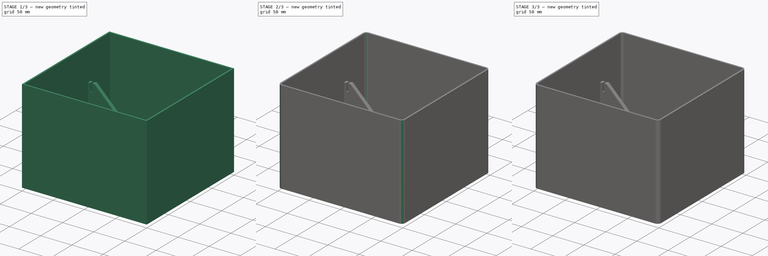
[diagram: build sequence overview — one tinted view per stage of 3, left to right]
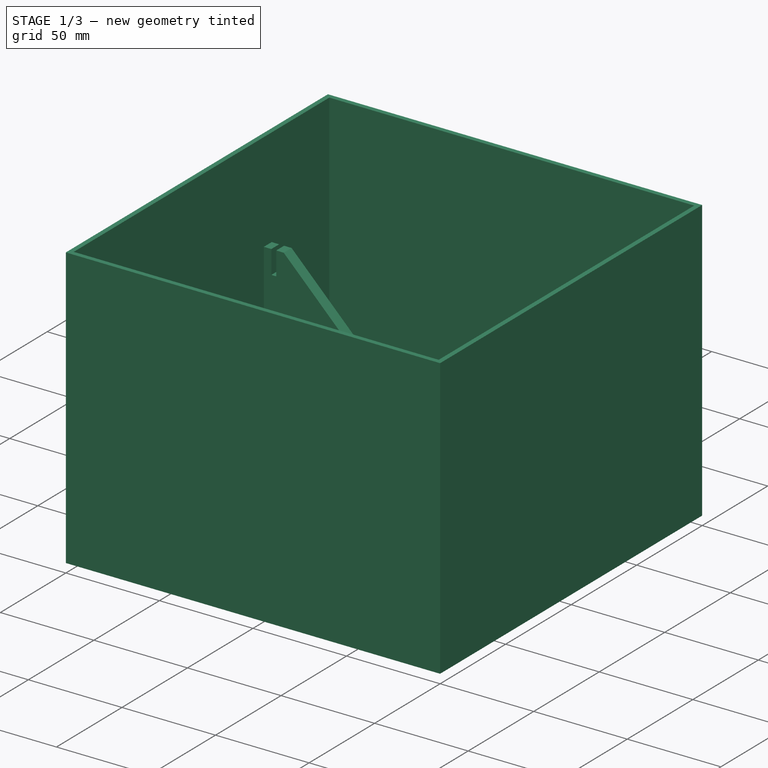
[diagram: stage 1 of 3 — iso view after this stage's code; geometry added in this stage tinted green]
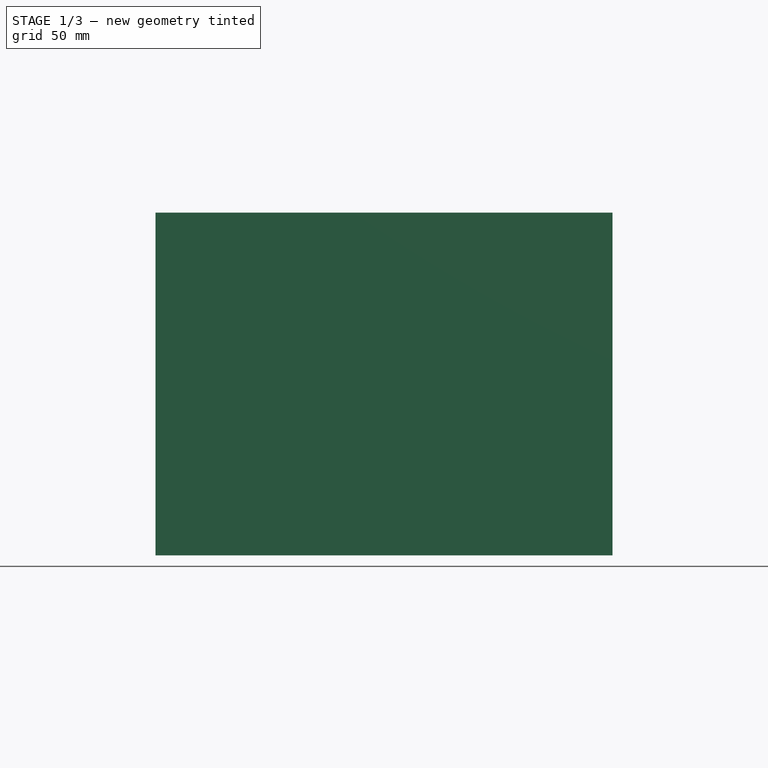
[diagram: stage 1 of 3 — front view after this stage's code; geometry added in this stage tinted green]
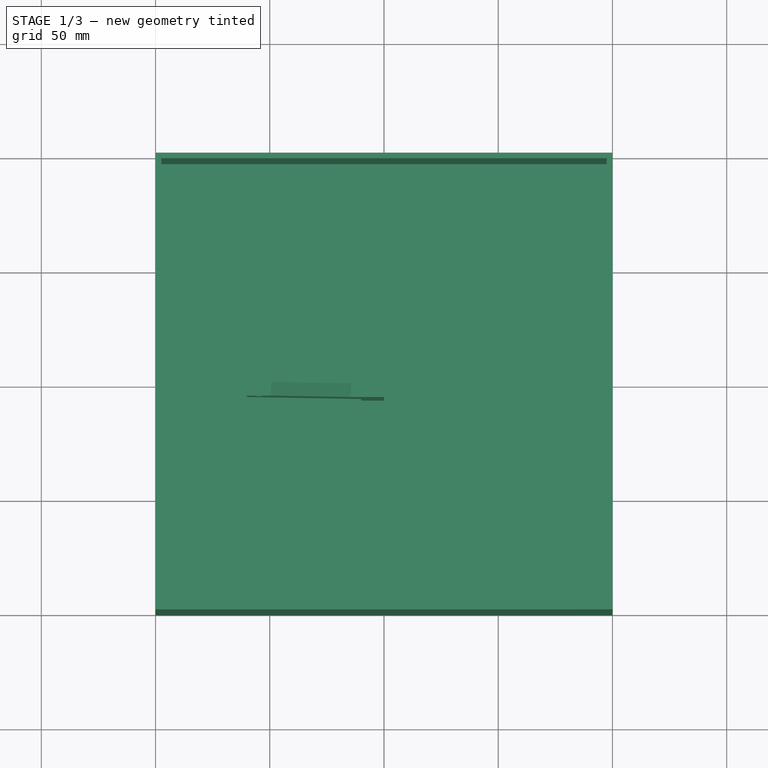
[diagram: stage 1 of 3 — top view after this stage's code; geometry added in this stage tinted green]
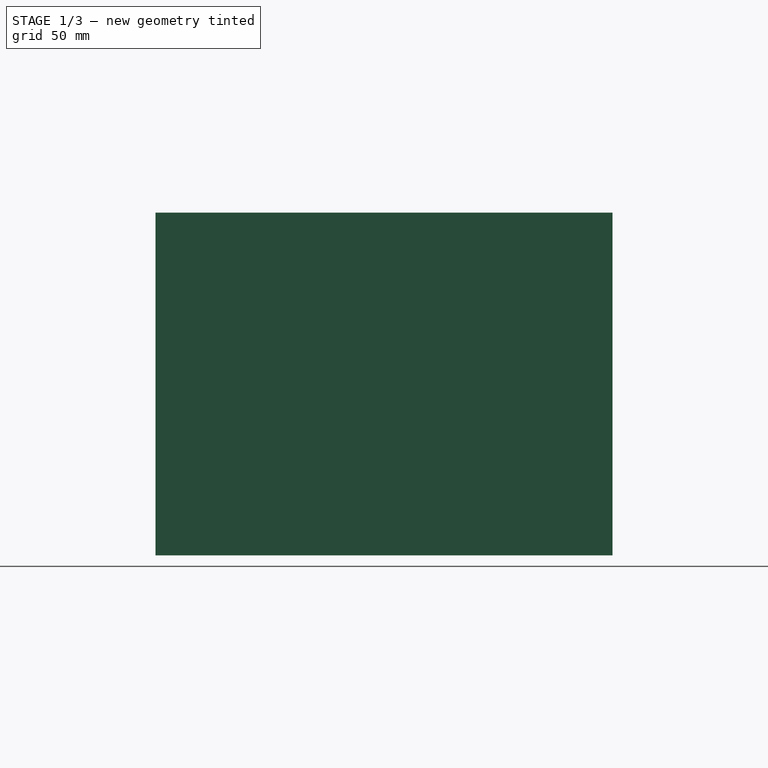
[diagram: stage 1 of 3 — right view after this stage's code; geometry added in this stage tinted green]
FCSTD DOCUMENT  (FreeCAD 0.21RUnknown)
Label: useless-box
License: All rights reserved
LicenseURL: https://en.wikipedia.org/wiki/All_rights_reserved
objects: Part::Feature×10, Sketcher::SketchObject×7, App::Part×7, PartDesign::Body×4, PartDesign::Pad×3, Spreadsheet::Sheet×3, PartDesign::Pocket×3, App::DocumentObjectGroup×3, PartDesign::Fillet×2, PartDesign::CoordinateSystem×1, App::FeaturePython×1
note: 38 computed .brp shape members not serialized (recipe doc carries the construction recipe); baked Part::Feature solids carry a one-line shape summary decoded from their .brp

FEATURE [PartDesign::Body] Body001
  Group = -> [Sketch001,Pad,Pocket001,Sketch002,Pocket,Sketch003]
  Origin = -> Origin002
  Tip = -> Pocket
FEATURE [App::Part] Part  label="BatteryHolder"
  Group = -> [Body001]
  Origin = -> Origin001
  Placement = pos=(61,68,3) rot=(0,0,1;0rad)
FEATURE [Part::Feature] Part__Feature  label="COMPOUND"
  shape: bbox 35.38 x 8.41 x 86 mm, 4496 faces (baked)
FEATURE [Part::Feature] Part__Feature001  label="COMPOUND001"
  shape: bbox 11.3 x 8.41 x 86 mm, 519 faces (baked)
FEATURE [Part::Feature] Part__Feature002  label="COMPOUND002"
  shape: bbox 9.3 x 8.41 x 86 mm, 519 faces (baked)
FEATURE [App::Part] COMPOUND  label="COMPOUND003"
  Group = -> [Part__Feature,Part__Feature001,Part__Feature002]
  Origin = -> Origin003
FEATURE [App::Part] Breadboard_400  label="Breadboard 400"
  Group = -> [COMPOUND]
  Origin = -> Origin004
  Placement = pos=(-59,43,3) rot=(-0.57735,-0.57735,-0.57735;4.18879rad)
FEATURE [Spreadsheet::Sheet] Spreadsheet001  label="BoxParameters"
  cells = A1='width; B1(width)==200 mm; D1='Computed ->; A2='length; B2(length)==200 mm; A3='height; B3(height)==150 mm; E3='inner_height; F3(inner_height)==B3 - B5; A5='wall_width; B5(wall_width)==2.5 mm; A7='smoothness_sides; B7(smoothness_sides)==6 mm; E7='smoothness_sides_inner; F7(smoothness_sides_inner)==B7 - B5; A9='motor_height_from_top; B9==20 mm; E9='motor_height; F9(motor_height)==F3 - B9
FEATURE [Part::Feature] Part__Feature003  label="Llave tecla doble corte Redonda"
  shape: bbox 0.8 x 8 x 4.8 mm, 14 faces (baked)
FEATURE [Part::Feature] Part__Feature004  label="Llave tecla doble corte Redonda001"
  shape: bbox 0.8 x 8 x 4.8 mm, 14 faces (baked)
FEATURE [Part::Feature] Part__Feature005  label="Llave tecla doble corte Redonda002"
  shape: bbox 0.8 x 8 x 4.8 mm, 14 faces (baked)
FEATURE [Part::Feature] Part__Feature006  label="Llave tecla doble corte Redonda003"
  shape: bbox 0.8 x 8 x 4.8 mm, 14 faces (baked)
FEATURE [Part::Feature] Part__Feature007  label="Llave tecla doble corte Redonda004"
  shape: bbox 17 x 11.75 x 17 mm, 6 faces (baked)
FEATURE [Part::Feature] Part__Feature008  label="Llave tecla doble corte Redonda005"
  shape: bbox 23.08 x 26.32 x 23 mm, 97 faces (baked)
FEATURE [App::Part] Llave_tecla_doble_corte_Redonda  label="Llave tecla doble corte Redonda006"
  Group = -> [Part__Feature003,Part__Feature004,Part__Feature005,Part__Feature006,Part__Feature007,Part__Feature008]
  Origin = -> Origin007
  Placement = pos=(75,-100,41) rot=(0,0,1;3.14159rad)
FEATURE [Sketcher::SketchObject] Sketch004
  FullyConstrained = true
  MapMode = 5
  Support = -> [XY_Plane006]
  expr: Constraints[10] = <<BoxParameters>>.length / 2
  expr: Constraints[11] = <<BoxParameters>>.width / 2
  expr: Constraints[8] = <<BoxParameters>>.width
  expr: Constraints[9] = <<BoxParameters>>.length
  sketch-geometry (4):
    g0: LineSegment StartX=-100 StartY=100 StartZ=0 EndX=100 EndY=100 EndZ=0
    g1: LineSegment StartX=100 StartY=100 StartZ=0 EndX=100 EndY=-100 EndZ=0
    g2: LineSegment StartX=100 StartY=-100 StartZ=0 EndX=-100 EndY=-100 EndZ=0
    g3: LineSegment StartX=-100 StartY=-100 StartZ=0 EndX=-100 EndY=100 EndZ=0
  constraints (12):
    c: Coincident(g0,g1)
    c: Coincident(g1,g2)
    c: Coincident(g2,g3)
    c: Coincident(g3,g0)
    c: Horizontal(g0)
    c: Horizontal(g2)
    c: Vertical(g1)
    c: Vertical(g3)
    c: DistanceX(g0,g0) = 200
    c: DistanceY(g3,g3) = 200
    c: DistanceY(g-1,g0) = 100
    c: DistanceX(g0,g-1) = 100
FEATURE [PartDesign::Pad] Pad001
  Direction = (0,0,1)
  Length = 150
  Length2 = 10
  Profile = -> Sketch004
  ReferenceAxis = -> Sketch004 [N_Axis]
  Type = 0
  expr: Length = <<BoxParameters>>.height
FEATURE [Sketcher::SketchObject] Sketch005
  ExternalGeometry = -> [Pad001]
  FullyConstrained = true
  MapMode = 5
  Placement = pos=(0,0,150) rot=(0,0,1;0rad)
  Support = -> [Pad001]
  expr: Constraints[10] = <<BoxParameters>>.wall_width
  expr: Constraints[11] = <<BoxParameters>>.wall_width
  expr: Constraints[8] = <<BoxParameters>>.wall_width
  expr: Constraints[9] = <<BoxParameters>>.wall_width
  sketch-geometry (4):
    g0: LineSegment StartX=-97.5 StartY=97.5 StartZ=0 EndX=97.5 EndY=97.5 EndZ=0
    g1: LineSegment StartX=97.5 StartY=97.5 StartZ=0 EndX=97.5 EndY=-97.5 EndZ=0
    g2: LineSegment StartX=97.5 StartY=-97.5 StartZ=0 EndX=-97.5 EndY=-97.5 EndZ=0
    g3: LineSegment StartX=-97.5 StartY=-97.5 StartZ=0 EndX=-97.5 EndY=97.5 EndZ=0
  constraints (12):
    c: Coincident(g0,g1)
    c: Coincident(g1,g2)
    c: Coincident(g2,g3)
    c: Coincident(g3,g0)
    c: Horizontal(g0)
    c: Horizontal(g2)
    c: Vertical(g1)
    c: Vertical(g3)
    c: DistanceX(g-4,g0) = 2.5
    c: DistanceY(g0,g-6) = 2.5
    c: DistanceX(g1,g-6) = 2.5
    c: DistanceY(g-5,g2) = 2.5
FEATURE [PartDesign::Pocket] Pocket002
  BaseFeature = -> Pad001
  Direction = (0,0,-1)
  Length = 147.5
  Length2 = 5
  Profile = -> Sketch005
  ReferenceAxis = -> Sketch005 [N_Axis]
  Type = 0
  expr: Length = <<BoxParameters>>.height - <<BoxParameters>>.wall_width
FEATURE [PartDesign::Body] Body002  label="Box base"
  Group = -> [Sketch004,Pad001,Sketch005,Pocket002,Fillet,Fillet001]
  Origin = -> Origin006
  Tip = -> Fillet001
FEATURE [App::Part] Part001  label="Box"
  Group = -> [Body002]
  Origin = -> Origin005
FEATURE [Part::Feature] Part__Feature009  label="Tower Pro MG90S Micro servo"
  Placement = pos=(-46.3,-19,121.2) rot=(0,0,1;1.5708rad)
  shape: bbox 33.03 x 32.28 x 12.77 mm, 767 faces (baked)
FEATURE [Sketcher::SketchObject] Sketch007
  FullyConstrained = true
  MapMode = 5
  Placement = pos=(0,0,0) rot=(1,0,0;1.5708rad)
  Support = -> [XZ_Plane009]
  expr: Constraints[11] = Spreadsheet002.holder_gap_width
  expr: Constraints[12] = <<ServoHolderParameters>>.holder_gap_height
  expr: Constraints[13] = <<ServoHolderParameters>>.holder_gap_height
  expr: Constraints[14] = <<ServoHolderParameters>>.holder_gap_support_width
  expr: Constraints[15] = <<ServoHolderParameters>>.holder_gap_support_width
  expr: Constraints[19] = <<ServoHolderParameters>>.flat_height
  expr: Constraints[21] = <<ServoHolderParameters>>.flat_height
  expr: Constraints[22] = <<ServoHolderParameters>>.flat_height
  expr: Constraints[23] = <<ServoHolderParameters>>.servo_x_position - <<ServoHolderParameters>>.base_width
  expr: Constraints[24] = <<ServoHolderParameters>>.servo_x_position - <<ServoHolderParameters>>.base_width
  expr: Constraints[33] = <<BoxParameters>>.motor_height
  expr: Constraints[34] = <<ServoHolderParameters>>.base_width
  sketch-geometry (12):
    g0: LineSegment StartX=-10 StartY=42.5 StartZ=0 EndX=-60 EndY=92.5 EndZ=0
    g1: LineSegment StartX=-60 StartY=127.5 StartZ=0 EndX=-60 EndY=92.5 EndZ=0
    g2: LineSegment StartX=-60 StartY=127.5 StartZ=0 EndX=-56 EndY=127.5 EndZ=0
    g3: LineSegment StartX=-56 StartY=127.5 StartZ=0 EndX=-56 EndY=115 EndZ=0
    g4: LineSegment StartX=-56 StartY=115 StartZ=0 EndX=-53.4 EndY=115 EndZ=0
    g5: LineSegment StartX=-53.4 StartY=115 StartZ=0 EndX=-53.4 EndY=127.5 EndZ=0
    g6: LineSegment StartX=-53.4 StartY=127.5 StartZ=0 EndX=-49.4 EndY=127.5 EndZ=0
    g7: LineSegment StartX=-49.4 StartY=127.5 StartZ=0 EndX=-14.4 EndY=92.5 EndZ=0
    g8: LineSegment StartX=-14.4 StartY=92.5 StartZ=0 EndX=0 EndY=92.5 EndZ=0
    g9: LineSegment StartX=0 StartY=92.5 StartZ=0 EndX=0 EndY=0 EndZ=0
    g10: LineSegment StartX=0 StartY=0 StartZ=0 EndX=-10 EndY=0 EndZ=0
    g11: LineSegment StartX=-10 StartY=0 StartZ=0 EndX=-10 EndY=42.5 EndZ=0
  constraints (35):
    c: Coincident(g1,g0)
    c: Vertical(g1)
    c: Coincident(g2,g1)
    c: Coincident(g3,g2)
    c: Vertical(g3)
    c: Coincident(g4,g3)
    c: Horizontal(g4)
    c: Coincident(g5,g4)
    c: Horizontal(g6)
    c: Coincident(g7,g6)
    c: Horizontal(g8)
    c: DistanceX(g4,g4) = 2.6
    c: DistanceY(g3,g3) = 12.5
    c: DistanceY(g5,g5) = 12.5
    c: DistanceX(g2,g2) = 4
    c: DistanceX(g6,g6) = 4
    c: Horizontal(g2)
    c: Vertical(g5)
    c: Coincident(g5,g6)
    c: DistanceY(g1,g1) = 35
    c: Coincident(g7,g8)
    c: DistanceX(g7,g7) = 35
    c: DistanceY(g7,g7) = 35
    c: DistanceX(g0,g0) = 50
    c: DistanceY(g0,g0) = 50
    c: Coincident(g9,g8)
    c: Vertical(g9)
    c: Coincident(g10,g9)
    c: Coincident(g11,g10)
    c: Coincident(g11,g0)
    c: Vertical(g11)
    c: Horizontal(g10)
    c: Coincident(g9,g-1)
    c: DistanceY(g9,g1) = 127.5
    c: DistanceX(g10,g10) = 10
FEATURE [Spreadsheet::Sheet] Spreadsheet002  label="ServoHolderParameters"
  cells = A1='base_width; B1(base_width)==10 mm; A2='holder_gap_width; B2(holder_gap_width)==2.6 mm; A3='holder_gap_height; B3(holder_gap_height)==12.5 mm; A4='servo_x_position; B4(servo_x_position)==60 mm; A5='flat_height; B5(flat_height)==35 mm; A6='holder_gap_support_width; B6(holder_gap_support_width)==4 mm; A7='thickness; B7(thickness)==6 mm
FEATURE [PartDesign::Pad] Pad002
  Direction = (0,-1,-2e-16)
  Length = 6
  Length2 = 10
  Placement = pos=(0,0,0) rot=(1,0,0;1.5708rad)
  Profile = -> Sketch007
  ReferenceAxis = -> Sketch007 [N_Axis]
  Type = 0
  expr: Length = <<ServoHolderParameters>>.thickness
FEATURE [PartDesign::Body] Body003
  Group = -> [Sketch007,Pad002]
  Origin = -> Origin009
  Tip = -> Pad002
FEATURE [App::Part] Part002  label="ServoHolder"
  Group = -> [Part__Feature009,Body003]
  Origin = -> Origin008
FEATURE [App::DocumentObjectGroup] Parts
  Group = -> [Body,Part,Breadboard_400,Part001,Llave_tecla_doble_corte_Redonda,Part002]
FEATURE [PartDesign::CoordinateSystem] LCS_Origin
  AttacherType = Attacher::AttachEngine3D
  MapMode = 2
  Support = -> [X_Axis010]
FEATURE [App::DocumentObjectGroup] Constraints
FEATURE [App::FeaturePython] Variables  # WARN: FeaturePython — macro-defined, semantics opaque (R4)
  Type = App::PropertyContainer
FEATURE [App::DocumentObjectGroup] Configurations
FEATURE [App::Part] Assembly
  AssemblyType = Part::Link
  Group = -> [LCS_Origin,Constraints,Variables,Configurations]
  Origin = -> Origin010
  Type = Assembly
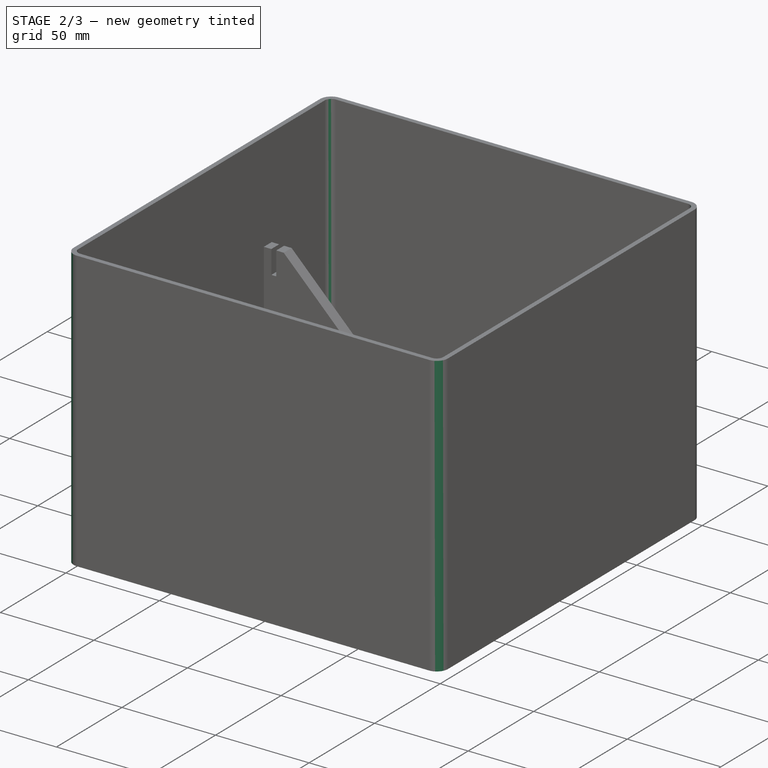
[diagram: stage 2 of 3 — iso view after this stage's code; geometry added in this stage tinted green]
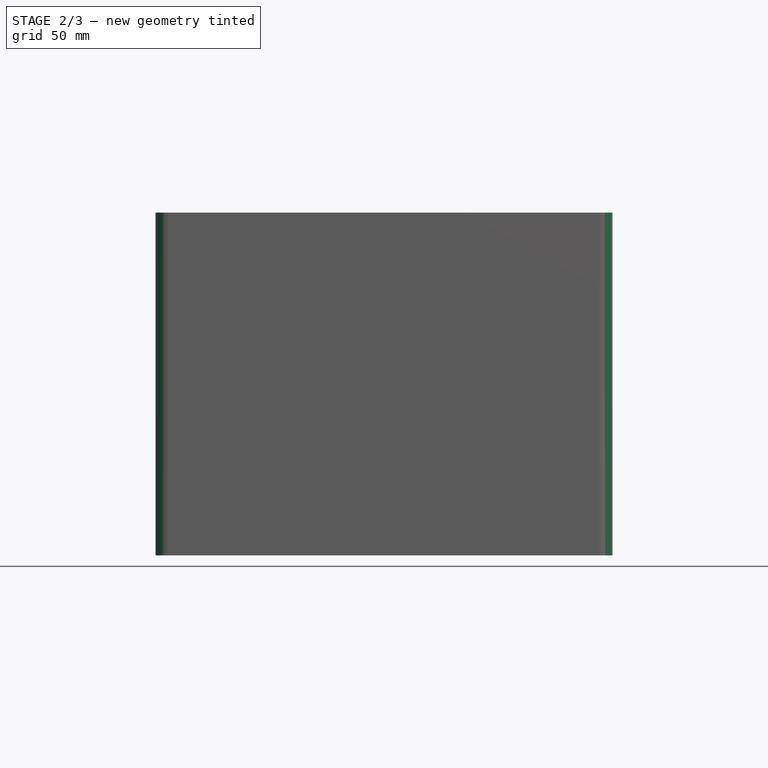
[diagram: stage 2 of 3 — front view after this stage's code; geometry added in this stage tinted green]
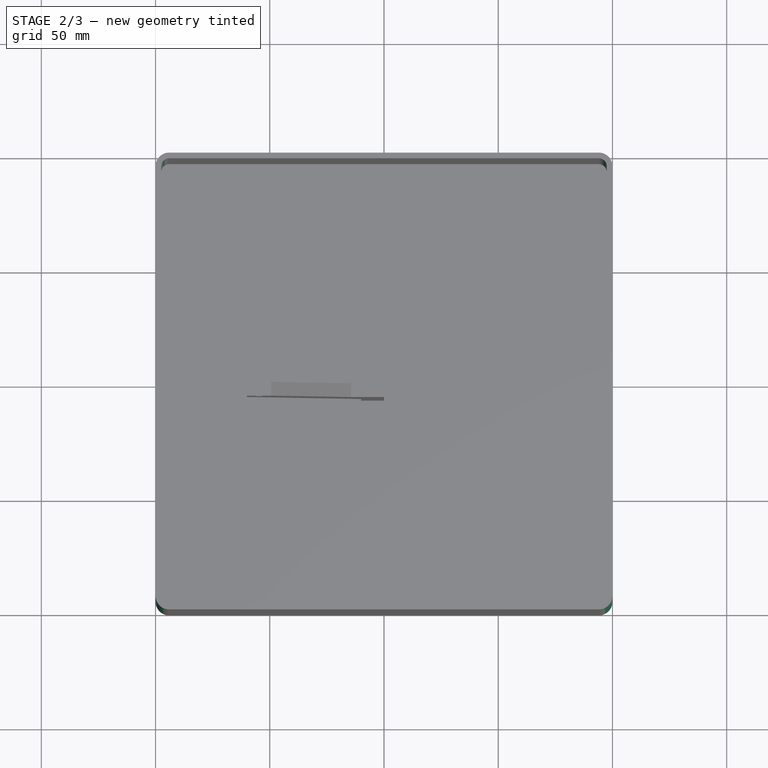
[diagram: stage 2 of 3 — top view after this stage's code; geometry added in this stage tinted green]
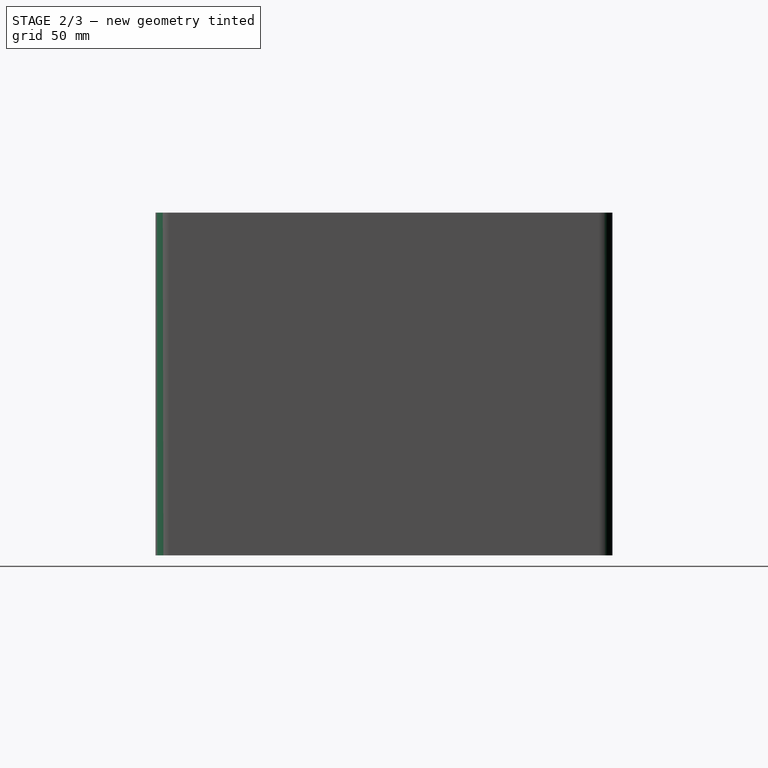
[diagram: stage 2 of 3 — right view after this stage's code; geometry added in this stage tinted green]
FEATURE [PartDesign::Fillet] Fillet
  Base = -> Pocket002 [Edge5,Edge8,Edge2,Edge1]
  BaseFeature = -> Pocket002
  Radius = 6
  SupportTransform = false
  UseAllEdges = false
  expr: Radius = <<BoxParameters>>.smoothness_sides
FEATURE [PartDesign::Fillet] Fillet001
  Base = -> Fillet [Edge34,Edge30,Edge32,Edge29]
  BaseFeature = -> Fillet
  Radius = 3.5
  SupportTransform = false
  UseAllEdges = false
  expr: Radius = <<BoxParameters>>.smoothness_sides_inner
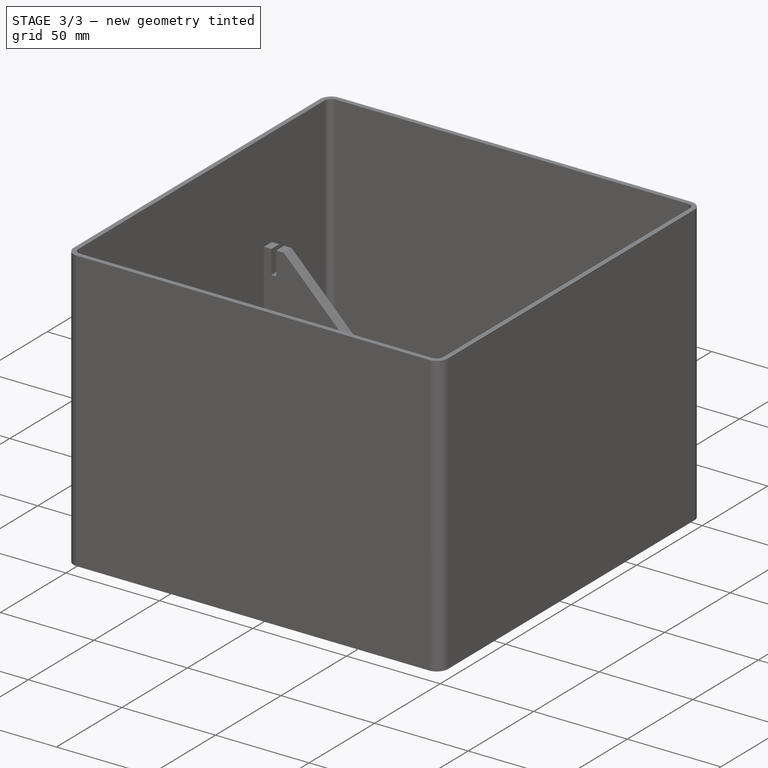
[diagram: stage 3 of 3 — iso view after this stage's code; geometry added in this stage tinted green]
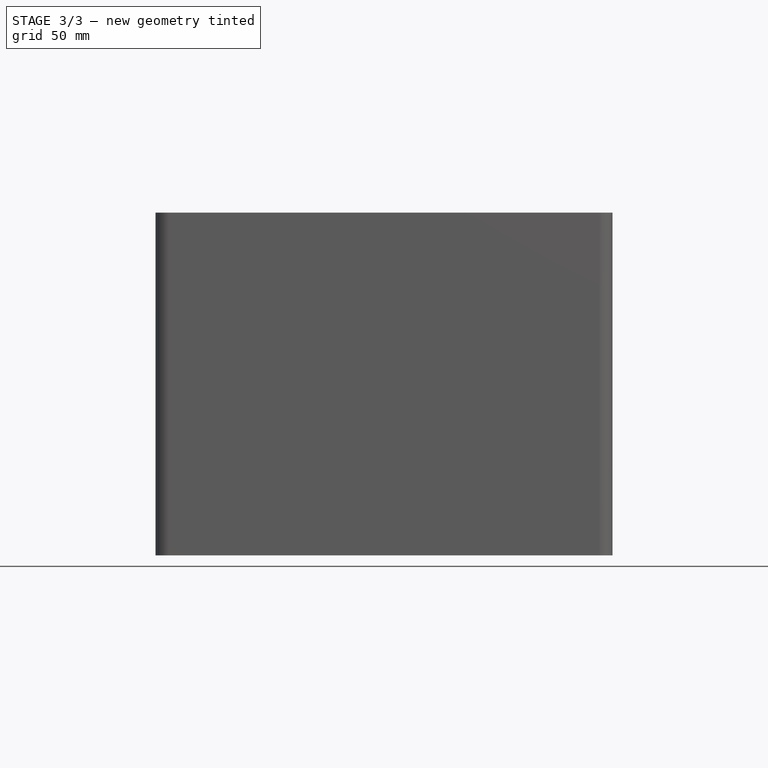
[diagram: stage 3 of 3 — front view after this stage's code; geometry added in this stage tinted green]
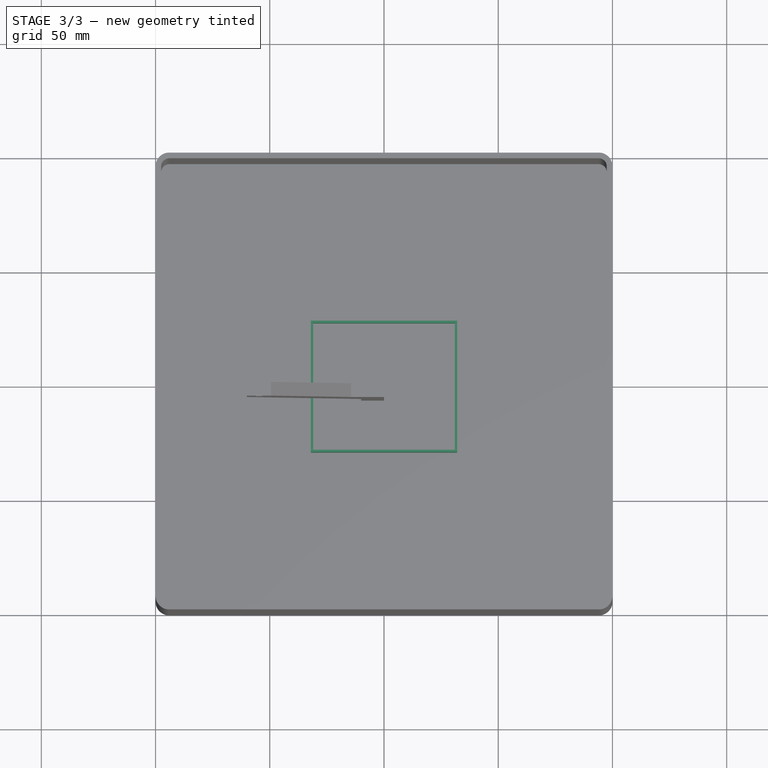
[diagram: stage 3 of 3 — top view after this stage's code; geometry added in this stage tinted green]
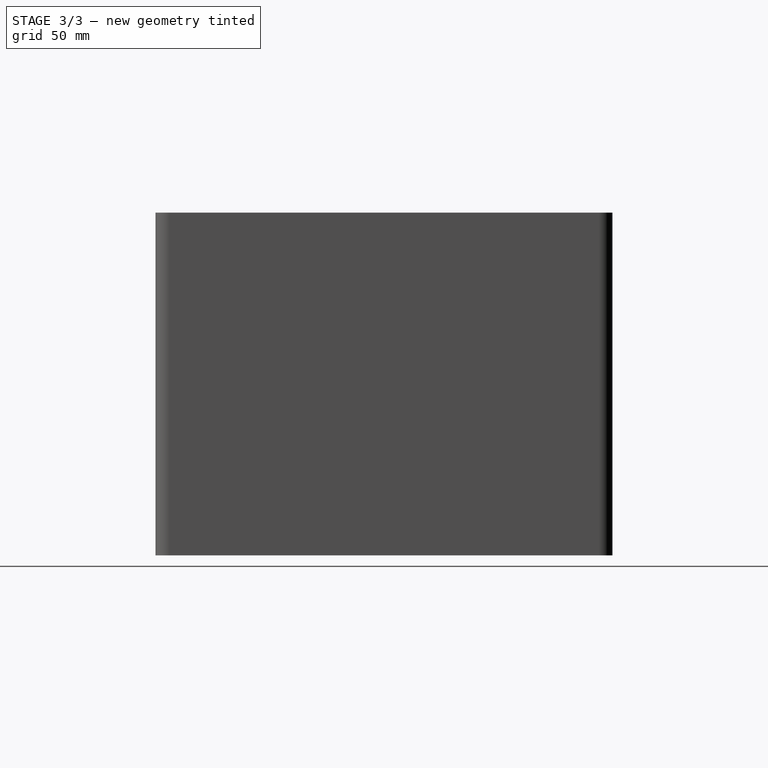
[diagram: stage 3 of 3 — right view after this stage's code; geometry added in this stage tinted green]
FEATURE [Sketcher::SketchObject] Sketch
  FullyConstrained = true
  MapMode = 5
  Support = -> [XY_Plane]
FEATURE [PartDesign::Body] Body
  Group = -> [Sketch]
  Origin = -> Origin
FEATURE [Sketcher::SketchObject] Sketch001
  FullyConstrained = true
  MapMode = 5
  Support = -> [XY_Plane002]
  expr: Constraints[10] = <<Parameters>>.width / 2
  expr: Constraints[11] = <<Parameters>>.length / 2
  expr: Constraints[8] = <<Parameters>>.width
  expr: Constraints[9] = <<Parameters>>.length
  sketch-geometry (4):
    g0: LineSegment StartX=-32 StartY=28.75 StartZ=0 EndX=32 EndY=28.75 EndZ=0
    g1: LineSegment StartX=32 StartY=28.75 StartZ=0 EndX=32 EndY=-28.75 EndZ=0
    g2: LineSegment StartX=32 StartY=-28.75 StartZ=0 EndX=-32 EndY=-28.75 EndZ=0
    g3: LineSegment StartX=-32 StartY=-28.75 StartZ=0 EndX=-32 EndY=28.75 EndZ=0
  constraints (12):
    c: Coincident(g0,g1)
    c: Coincident(g1,g2)
    c: Coincident(g2,g3)
    c: Coincident(g3,g0)
    c: Horizontal(g0)
    c: Horizontal(g2)
    c: Vertical(g1)
    c: Vertical(g3)
    c: DistanceX(g0,g0) = 64
    c: DistanceY(g3,g3) = 57.5
    c: DistanceX(g0,g-1) = 32
    c: DistanceY(g-1,g0) = 28.75
FEATURE [PartDesign::Pad] Pad
  Direction = (0,0,1)
  Length = 16
  Length2 = 10
  Profile = -> Sketch001
  ReferenceAxis = -> Sketch001 [N_Axis]
  Type = 0
  expr: Length = <<Parameters>>.full_height
FEATURE [Sketcher::SketchObject] Sketch002
  ExternalGeometry = -> [Pad]
  FullyConstrained = true
  MapMode = 5
  Placement = pos=(0,0,16) rot=(0,0,1;0rad)
  Support = -> [Pad]
  expr: Constraints[1] = <<Parameters>>.hole_diameter
  expr: Constraints[2] = <<Parameters>>.hole_distance
  expr: Constraints[3] = <<Parameters>>.hole_diameter
  expr: Constraints[4] = <<Parameters>>.hole_distance
  sketch-geometry (2):
    g0: Circle CenterX=-29 CenterY=0 CenterZ=0 NormalX=0 NormalY=0 NormalZ=1 AngleXU=0 Radius=1.5
    g1: Circle CenterX=29 CenterY=0 CenterZ=0 NormalX=0 NormalY=0 NormalZ=1 AngleXU=0 Radius=1.5
  constraints (6):
    c: PointOnObject(g0,g-1)
    c: Diameter(g0) = 3
    c: DistanceX(g-5,g0) = 3
    c: Diameter(g1) = 3
    c: DistanceX(g1,g-5) = 3
    c: PointOnObject(g1,g-1)
FEATURE [Spreadsheet::Sheet] Spreadsheet  label="Parameters"
  cells = A1='width; B1(width)==64 mm; A2='length; B2(length)==57.5 mm; A3='bottom_height; B3(bottom_height)==1 mm; A4='full_height; B4(full_height)==16 mm; A6='hole_diameter; B6(hole_diameter)==3 mm; A7='hole_distance; B7(hole_distance)==3 mm; A9='wall_width; B9(wall_width)==1 mm
FEATURE [Sketcher::SketchObject] Sketch003
  FullyConstrained = true
  MapMode = 5
  Placement = pos=(0,0,16) rot=(0,0,1;0rad)
  Support = -> [Pad]
  expr: Constraints[10] = (<<Parameters>>.width - 2 * <<Parameters>>.wall_width) / 2
  expr: Constraints[11] = (<<Parameters>>.length - <<Parameters>>.wall_width * 2) / 2
  expr: Constraints[8] = <<Parameters>>.length - 2 * <<Parameters>>.wall_width
  expr: Constraints[9] = <<Parameters>>.width - 2 * <<Parameters>>.wall_width
  sketch-geometry (4):
    g0: LineSegment StartX=-31 StartY=27.75 StartZ=0 EndX=31 EndY=27.75 EndZ=0
    g1: LineSegment StartX=31 StartY=27.75 StartZ=0 EndX=31 EndY=-27.75 EndZ=0
    g2: LineSegment StartX=31 StartY=-27.75 StartZ=0 EndX=-31 EndY=-27.75 EndZ=0
    g3: LineSegment StartX=-31 StartY=-27.75 StartZ=0 EndX=-31 EndY=27.75 EndZ=0
  constraints (12):
    c: Coincident(g0,g1)
    c: Coincident(g1,g2)
    c: Coincident(g2,g3)
    c: Coincident(g3,g0)
    c: Horizontal(g0)
    c: Horizontal(g2)
    c: Vertical(g1)
    c: Vertical(g3)
    c: DistanceY(g1,g1) = 55.5
    c: DistanceX(g0,g0) = 62
    c: DistanceX(g-1,g0) = 31
    c: DistanceY(g-1,g0) = 27.75
FEATURE [PartDesign::Pocket] Pocket001
  BaseFeature = -> Pad
  Direction = (0,0,-1)
  Length = 15
  Length2 = 5
  Profile = -> Sketch003
  ReferenceAxis = -> Sketch003 [N_Axis]
  Type = 0
  expr: Length = <<Parameters>>.full_height - <<Parameters>>.bottom_height
FEATURE [PartDesign::Pocket] Pocket
  BaseFeature = -> Pocket001
  Direction = (0,0,-1)
  Length = 1
  Length2 = 5
  Profile = -> Sketch002
  ReferenceAxis = -> Sketch002 [N_Axis]
  Type = 1
  expr: Length = <<Parameters>>.bottom_height
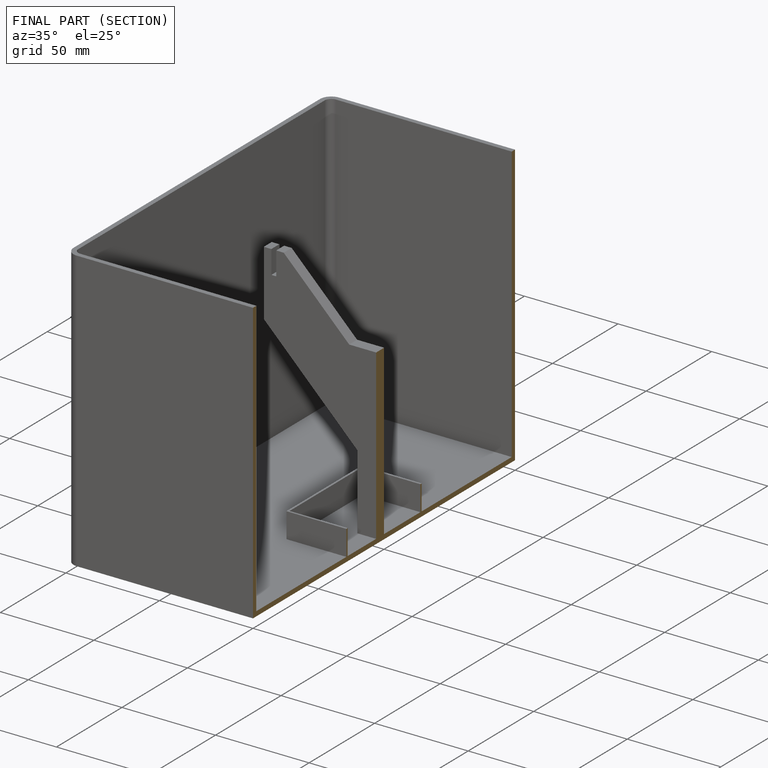
[diagram: finished part — half-section view (interior)]
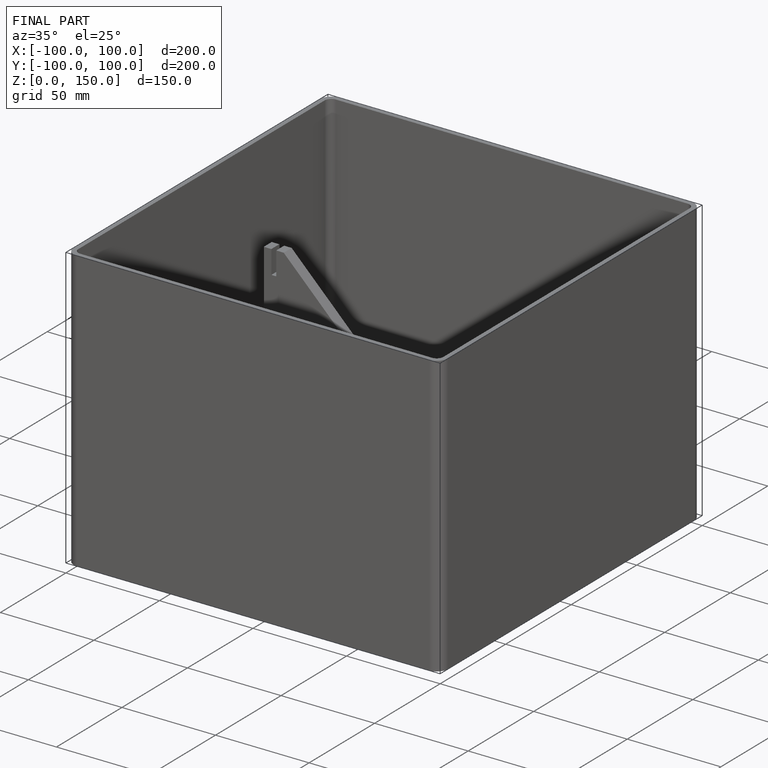
[diagram: finished part — iso view with bounding-box wireframe]
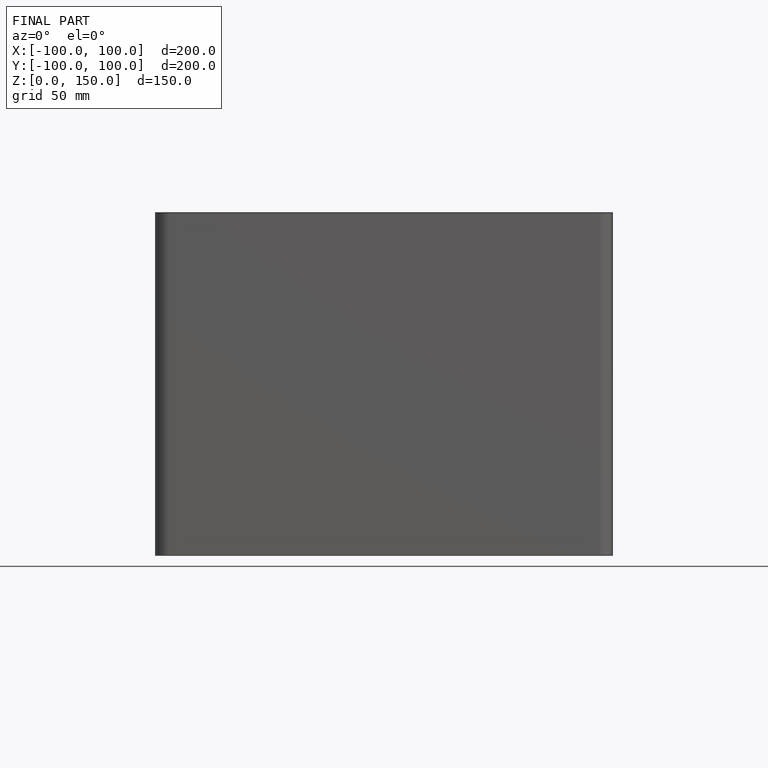
[diagram: finished part — front view with bounding-box wireframe]
